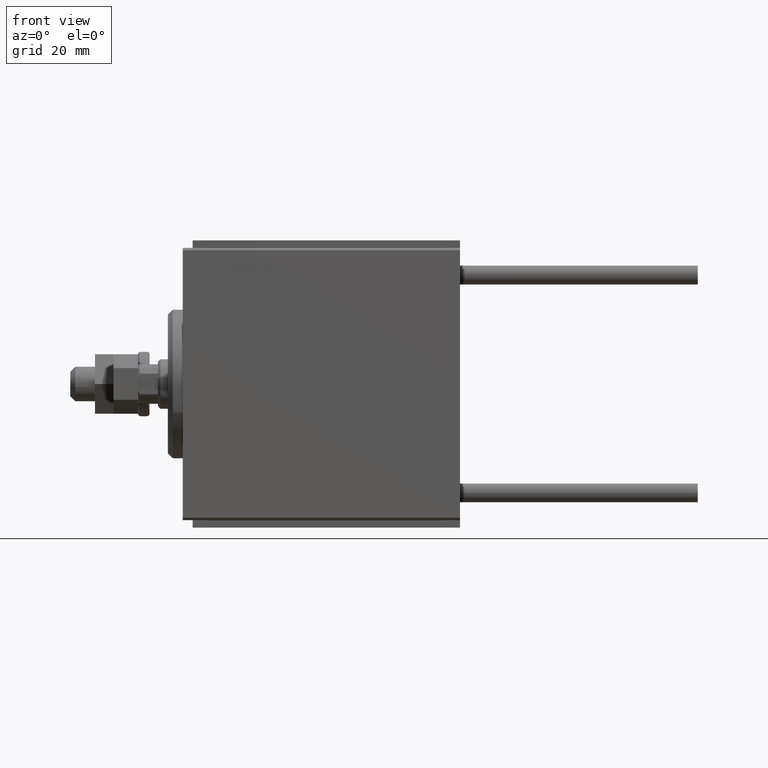
[diagram: clean part render]
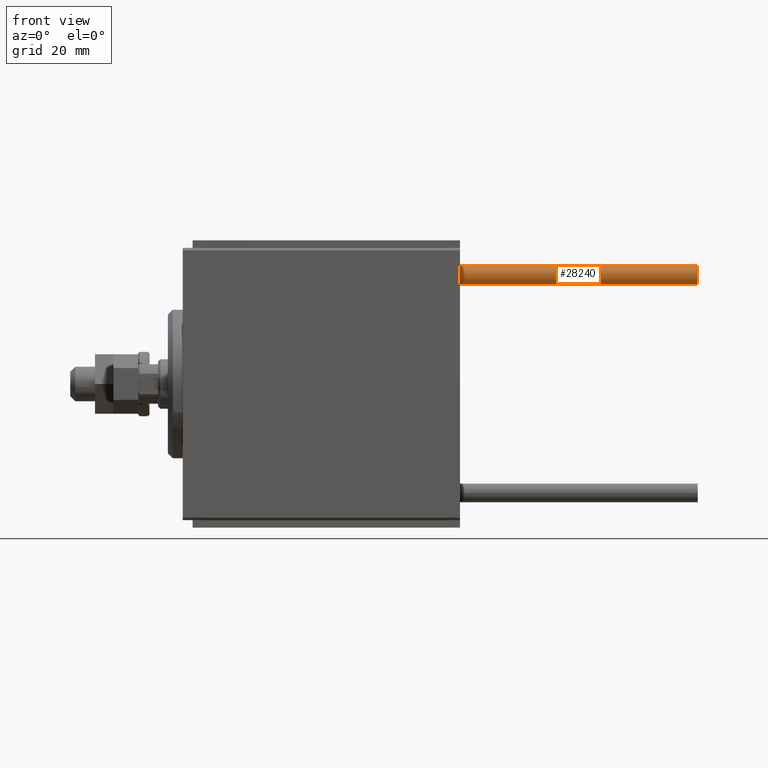
[diagram: same view with one face highlighted and labeled with its STEP entity id]
A machine part, front view. The second image highlights one B-rep face of the part: STEP entity #28240.
In plain terms, the highlighted cylindrical surface (edge-blend (fillet) strip) has radius 1.9 mm, axis along (-1, -0, 0).
Its self-contained STEP definition (entity closure, byte-faithful):
#902 = VERTEX_POINT ( 'NONE', #30232 ) ;
#2971 = DIRECTION ( 'NONE',  ( 1.000000000000000000, 0.000000000000000000, 0.000000000000000000 ) ) ;
#3674 = CARTESIAN_POINT ( 'NONE',  ( 1.899999999999999467, 2.326828918379970872E-16, 48.00000000000000000 ) ) ;
#5553 = FACE_OUTER_BOUND ( 'NONE', #32279, .T. ) ;
#8093 = EDGE_CURVE ( 'NONE', #12934, #25931, #19983, .T. ) ;
#8619 = DIRECTION ( 'NONE',  ( -1.000000000000000000, 0.000000000000000000, 0.000000000000000000 ) ) ;
#9456 = CARTESIAN_POINT ( 'NONE',  ( 1.899999999999999467, 2.326828918379970872E-16, 0.000000000000000000 ) ) ;
#9618 = DIRECTION ( 'NONE',  ( -0.000000000000000000, -0.000000000000000000, -1.000000000000000000 ) ) ;
#10114 = ORIENTED_EDGE ( 'NONE', *, *, #8093, .F. ) ;
#11129 = DIRECTION ( 'NONE',  ( 1.000000000000000000, 0.000000000000000000, 0.000000000000000000 ) ) ;
#12934 = VERTEX_POINT ( 'NONE', #3674 ) ;
#13416 = CARTESIAN_POINT ( 'NONE',  ( 0.000000000000000000, 0.000000000000000000, 48.00000000000000000 ) ) ;
#14936 = DIRECTION ( 'NONE',  ( 0.000000000000000000, 0.000000000000000000, 1.000000000000000000 ) ) ;
#17324 = EDGE_CURVE ( 'NONE', #41661, #902, #48756, .T. ) ;
#17329 = CARTESIAN_POINT ( 'NONE',  ( -1.899999999999999467, 0.000000000000000000, 48.00000000000000000 ) ) ;
#17577 = AXIS2_PLACEMENT_3D ( 'NONE', #13416, #9618, #8619 ) ;
#17597 = ORIENTED_EDGE ( 'NONE', *, *, #17324, .T. ) ;
#19983 = LINE ( 'NONE', #32183, #38871 ) ;
#21280 = VECTOR ( 'NONE', #29500, 1000.000000000000000 ) ;
#21554 = AXIS2_PLACEMENT_3D ( 'NONE', #30650, #14936, #11129 ) ;
#23653 = ORIENTED_EDGE ( 'NONE', *, *, #27518, .F. ) ;
#25606 = EDGE_CURVE ( 'NONE', #902, #25931, #34524, .T. ) ;
#25931 = VERTEX_POINT ( 'NONE', #9456 ) ;
#27518 = EDGE_CURVE ( 'NONE', #41661, #12934, #48329, .T. ) ;
#28240 = ADVANCED_FACE ( 'NONE', ( #5553 ), #40290, .T. ) ;
#28559 = CARTESIAN_POINT ( 'NONE',  ( -1.899999999999999467, 0.000000000000000000, 48.00000000000000000 ) ) ;
#29500 = DIRECTION ( 'NONE',  ( -0.000000000000000000, -0.000000000000000000, -1.000000000000000000 ) ) ;
#30232 = CARTESIAN_POINT ( 'NONE',  ( -1.899999999999999467, 0.000000000000000000, 0.000000000000000000 ) ) ;
#30650 = CARTESIAN_POINT ( 'NONE',  ( 0.000000000000000000, 0.000000000000000000, 0.000000000000000000 ) ) ;
#32183 = CARTESIAN_POINT ( 'NONE',  ( 1.899999999999999467, 2.326828918379970872E-16, 48.00000000000000000 ) ) ;
#32192 = AXIS2_PLACEMENT_3D ( 'NONE', #45325, #45071, #2971 ) ;
#32279 = EDGE_LOOP ( 'NONE', ( #10114, #23653, #17597, #35071 ) ) ;
#34524 = CIRCLE ( 'NONE', #21554, 1.899999999999999467 ) ;
#35071 = ORIENTED_EDGE ( 'NONE', *, *, #25606, .T. ) ;
#38871 = VECTOR ( 'NONE', #43560, 1000.000000000000000 ) ;
#40290 = CYLINDRICAL_SURFACE ( 'NONE', #17577, 1.899999999999999467 ) ;
#41661 = VERTEX_POINT ( 'NONE', #28559 ) ;
#43560 = DIRECTION ( 'NONE',  ( -0.000000000000000000, -0.000000000000000000, -1.000000000000000000 ) ) ;
#45071 = DIRECTION ( 'NONE',  ( 0.000000000000000000, 0.000000000000000000, 1.000000000000000000 ) ) ;
#45325 = CARTESIAN_POINT ( 'NONE',  ( 0.000000000000000000, 0.000000000000000000, 48.00000000000000000 ) ) ;
#48329 = CIRCLE ( 'NONE', #32192, 1.899999999999999467 ) ;
#48756 = LINE ( 'NONE', #17329, #21280 ) ;